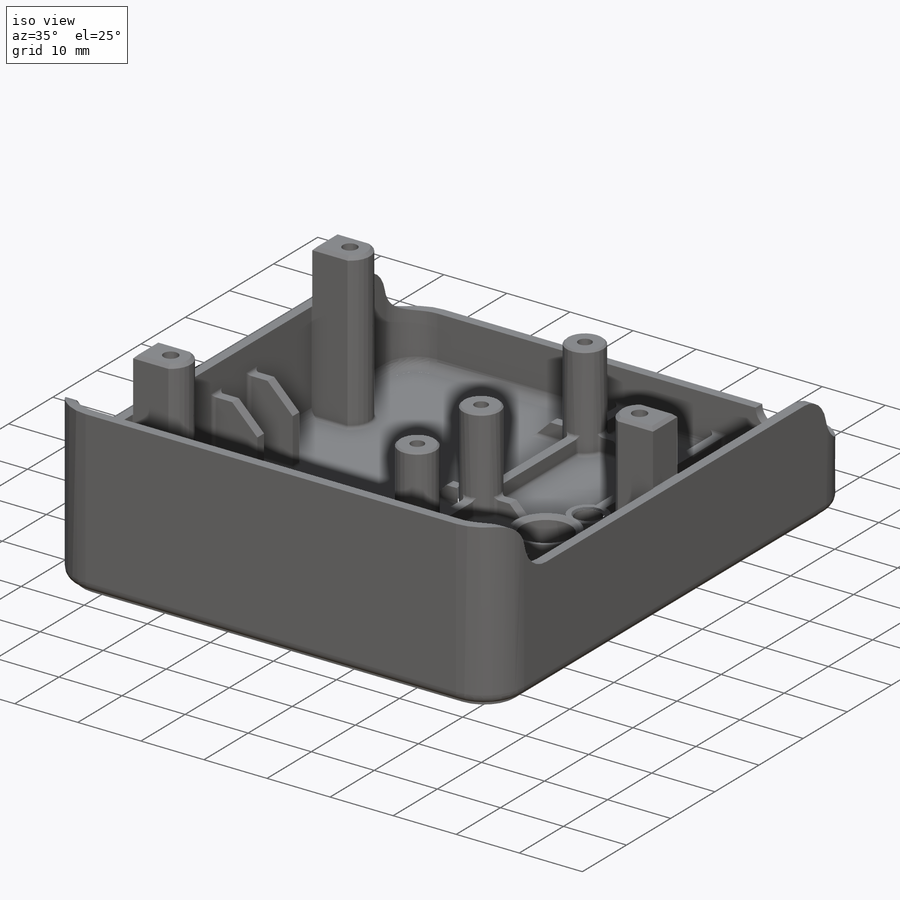
[diagram: iso view]
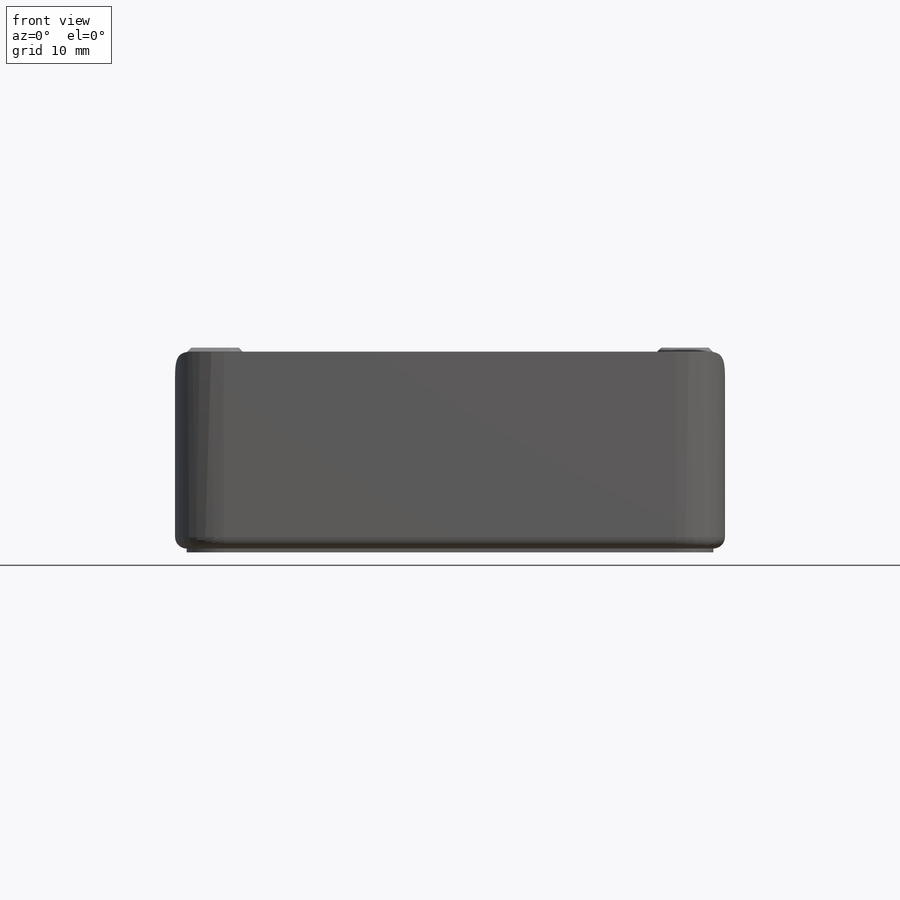
[diagram: front view]
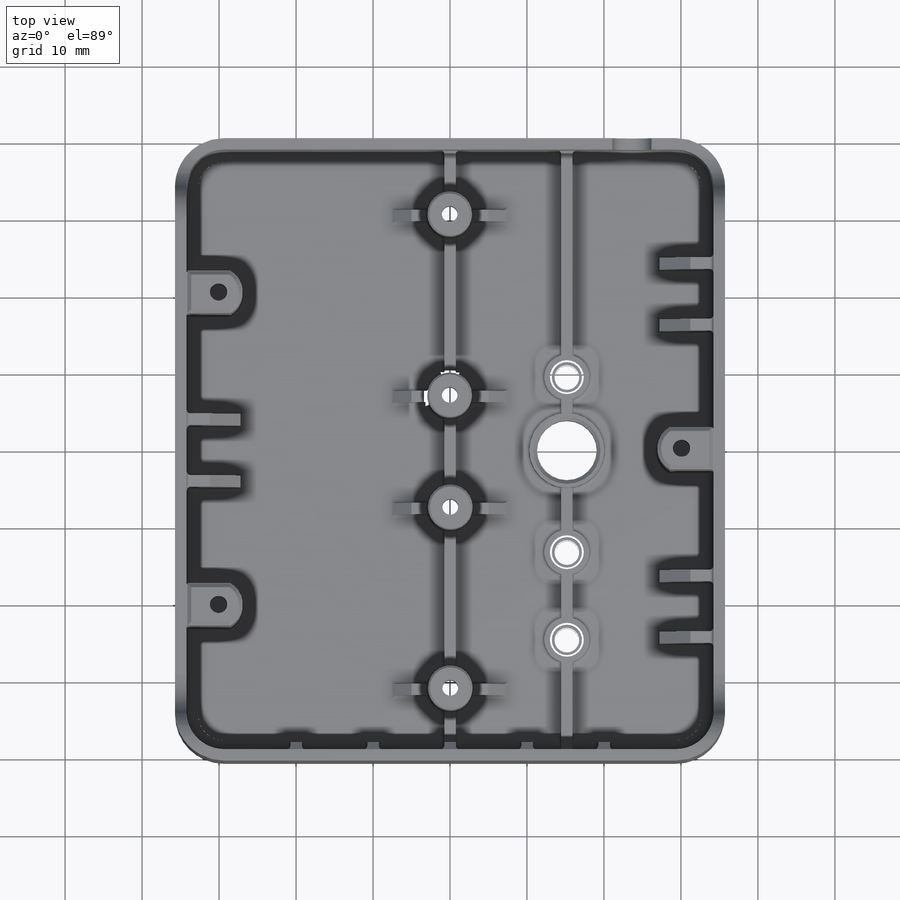
[diagram: top view]
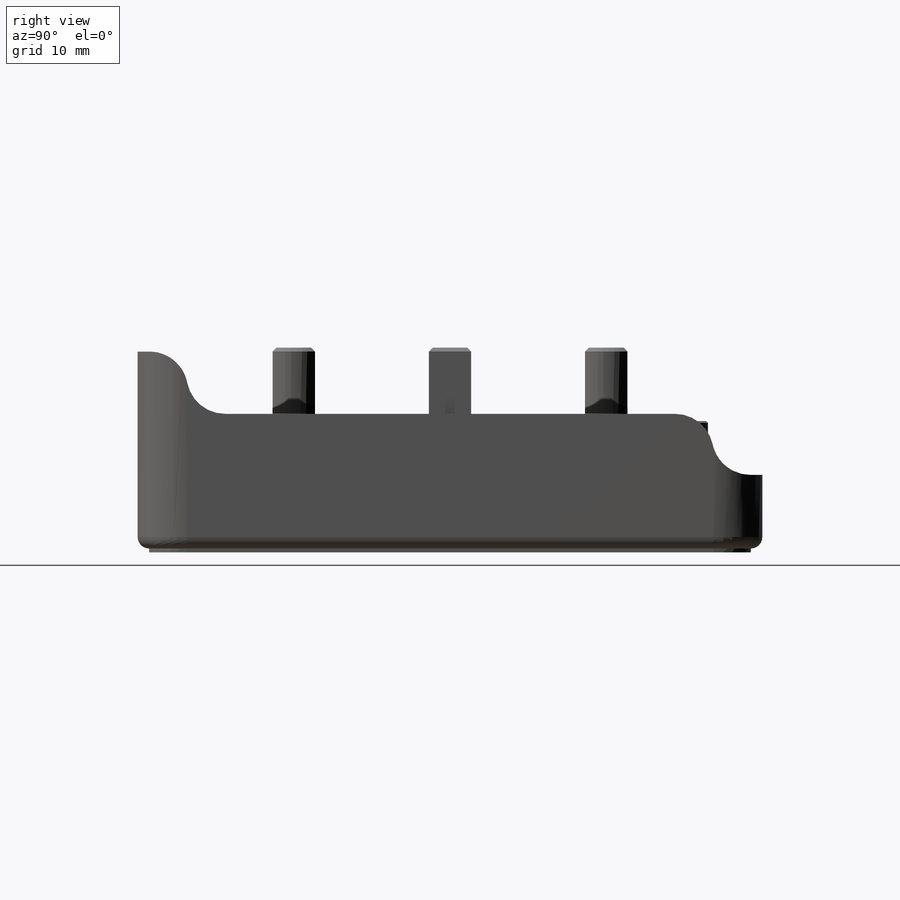
[diagram: right view]
SOLIDWORKS PART (.sldprt)
format: sldprt  version: not decoded by parser v0  size: 2,183,680 bytes
history: native  units: mm
features: sketch x17, extrude x14, chamfer x9, fillet x7, cut_extrude x3, plane x2, material x1, shell x1 (+11 scaffold rows collapsed)
feature tree (65):
  scaffold x11  (default folders/planes/origin — collapsed)
  material  "Material <not specified>"
  sketch  "Sketch1"  dims[D1=71.4375mm D2=81.153mm]
  extrude  "Boss-Extrude1"  Depth=9.5723mm
  fillet  "Fillet1"  Radius=6.35mm
  fillet  "Fillet2"  Radius=1.5mm
  shell  "Shell1"  Thickness=1.5mm
  sketch  "Sketch2"  dims[D1=0.0mm]
  extrude  "Boss-Extrude2"  Depth=0.5mm
  fillet  "Fillet3"  Radius=1.5mm
  plane  "Plane1"
  plane  "Plane2"
  sketch  "Sketch3"  dims[c1.D2=2.05mm c1.D8=3.4544mm c1.D9=3.4544mm c1.D10=3.4544mm c1.D11=3.4544mm c1.D1=~33.36925mm c1.D3=9.6266mm c1.D4=33.1343mm c1.D5=47.6885mm c1.D6=71.1962mm c1.D7=~33.29305mm c2.D8=1.5mm c2.D9=~33.968064mm c2.D1=~33.36925mm c3.D9=~33.89321mm c3.D10=~26.94305mm c3.D11=~26.94305mm c4.D10=~26.94305mm c4.D11=~26.94305mm c5.D10=2.9873mm c5.D11=2.9873mm c6.D10=~30.38195mm c6.D11=~31.88195mm c7.D10=~31.88195mm c7.D7=~33.29305mm c7.D9=~82.542809mm c8.D10=~34.86925mm c8.D11=~34.86925mm c8.D1=~33.36925mm c8.D9=2.0mm c9.D10=1.905mm c9.D11=1.875mm c9.D8=~0.03175mm c9.D7=~0.04445mm c9.D6=30.6197mm c9.D5=7.112mm c9.D4=7.4422mm c9.D3=30.9499mm c9.D9=1.5mm]
  extrude  "Boss-Extrude3"  Depth=15.0725mm
  sketch  "Sketch13"  dims[c1.D2=~9.391484mm c1.D3=6.302mm c1.D4=6.302mm c1.D5=2.2606mm c2.D2=3.151mm c2.D1=~8.348327mm c3.D2=~19.424301mm c3.D3=~14.120313mm c3.D4=~34.769381mm c3.D1=20.2946mm c4.D2=1.0mm c4.D4=1.0mm c4.D6=5.502mm c4.D3=5.651mm c4.D7=4.151mm c5.D3=5.651mm c5.D7=5.651mm]
  extrude  "Boss-Extrude8"  Depth=24.6mm
  sketch  "Sketch14"  dims[c1.D2=0.1mm c1.D3=0.1mm c1.D4=0.1mm c1.D5=0.1mm c2.D2=0.2mm c2.D3=0.2mm c2.D4=0.1mm c2.D5=0.1mm c3.D2=0.1mm c3.D3=0.1mm c3.D1=0.0mm]
  cut_extrude  "Cut-Extrude3"  [1 undecoded]
  sketch  "Sketch4"  dims[D2=5.08mm D1=~23.63825mm]
  cut_extrude  "Cut-Extrude1"  Depth=12.7mm
  sketch  "Sketch8"  dims[D1=1.5mm D2=1.5mm D3=1.5mm D4=1.5mm D5=1.5mm D6=7.5mm]
  extrude  "Boss-Extrude5"  Depth=2.5mm
  sketch  "Sketch9"  dims[c1.D3=7.75mm c1.D7=3.0mm c1.D1=~15.17965mm c1.D2=0.0957mm c1.D4=~13.211752mm c1.D5=~23.766152mm c1.D6=~7.370074mm c2.D4=13.125mm c2.D5=24.5mm c2.D6=9.62mm]
  cut_extrude  "Cut-Extrude2"  [1 undecoded]
  sketch  "Sketch10"  dims[D1=1.0mm]
  extrude  "Boss-Extrude6"  Depth=4mm
  sketch  "Sketch21"  dims[D1=3.9mm D2=1.0mm]
  extrude  "Boss-Extrude13"  Depth=2.5mm
  sketch  "Sketch11"  dims[D1=1.5mm]
  extrude  "Boss-Extrude7"  [1 undecoded]
  sketch  "Sketch16"  dims[D1=0.0mm]
  extrude  "Boss-Extrude9"  Depth=18mm
  sketch  "Sketch17"  dims[D1=1.5mm D2=6.502mm D3=8.5mm D4=6.502mm]
  extrude  "Boss-Extrude10"  Depth=13.625mm
  sketch  "Sketch18"  dims[D1=0.0mm]
  extrude  "Boss-Extrude11"  Depth=8.0772mm
  sketch  "Sketch19"  dims[D1=10.0mm D2=10.0mm D3=2.5mm]
  extrude  "Boss-Extrude12"  Depth=4.375mm
  chamfer  "Chamfer1"  Distance=0.5mm Angle=30deg
  chamfer  "Chamfer3"  Distance=0.5mm Angle=45deg
  chamfer  "Chamfer4"  Distance=0.5mm Angle=45deg
  chamfer  "Chamfer5"  Distance=0.25mm Angle=45deg
  chamfer  "Chamfer6"  Distance=2.5mm Angle=45deg
  chamfer  "Chamfer7"  Distance=4mm Angle=45deg
  fillet  "Fillet4"  Radius=5mm
  fillet  "Fillet5"  Radius=5mm
  chamfer  "Chamfer9"  Distance=1mm Angle=45deg
  sketch  "Sketch22"
  extrude  "Boss-Extrude14"  Depth=15.65mm
  fillet  "Fillet6"  Radius=0.5mm
  fillet  "Fillet7"  Radius=0.5mm
  chamfer  "Chamfer10"  Distance=0.1mm Angle=45deg
  chamfer  "Chamfer11"  Distance=0.25mm Angle=45deg
  sketch  "Sketch23"
  extrude  "Boss-Extrude15"  Depth=6.75mm
decode coverage: 46 of 51 modeling features carry decoded parameters
note: ~ marks probable driven/reference dimensions
note: 3 parameter values undecoded
summary: no parameter record found for 3 features
note: suppression state not decoded; provenance and decode notes live in map.json
